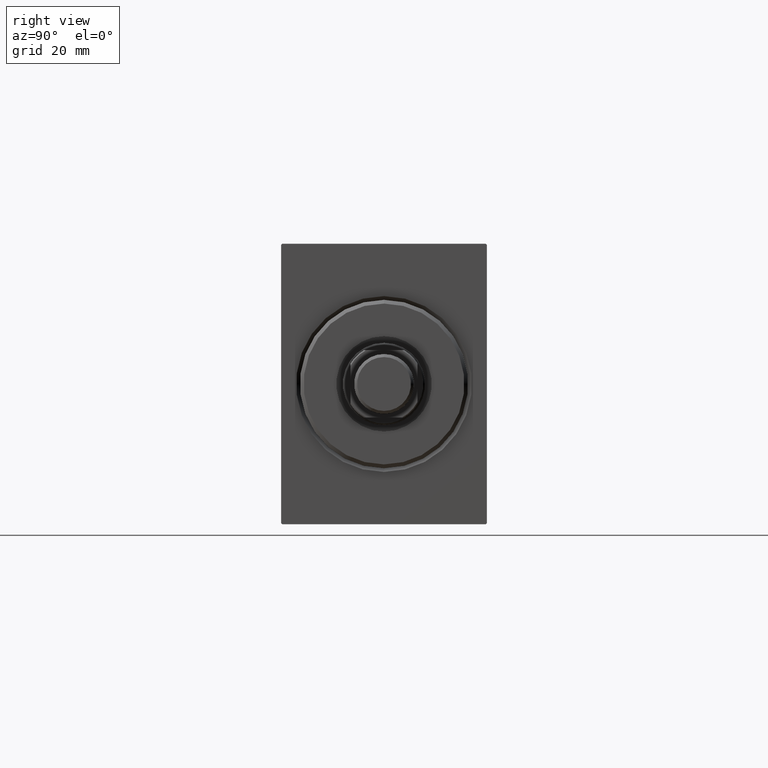
[diagram: clean part render]
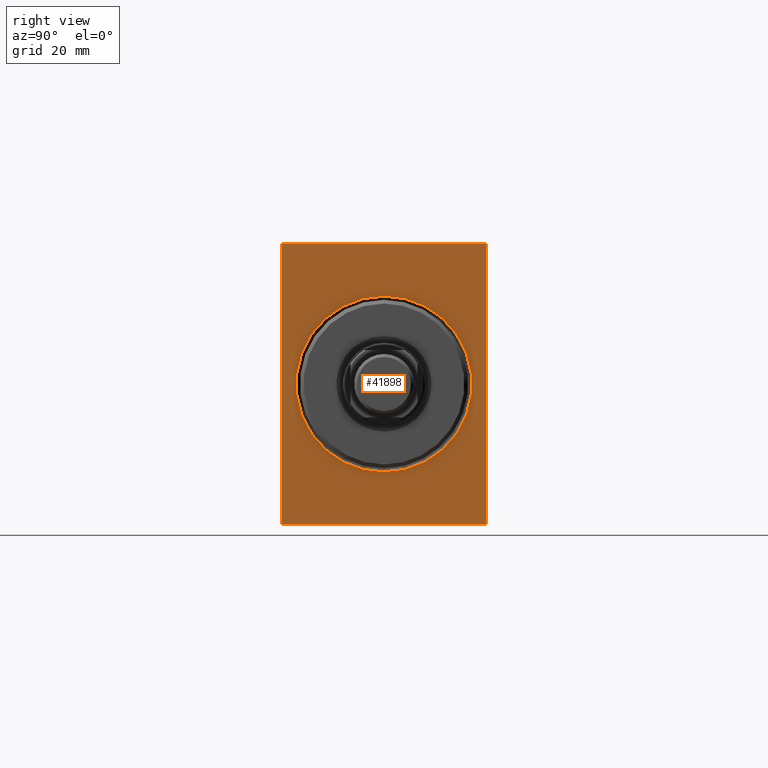
[diagram: same view with one face highlighted and labeled with its STEP entity id]
A machine part, right view. The second image highlights one B-rep face of the part: STEP entity #41898.
In plain terms, the highlighted planar face has unit normal (-1, 0, 0).
Its self-contained STEP definition (entity closure, byte-faithful):
#37 = EDGE_CURVE ( 'NONE', #37563, #41834, #14401, .T. ) ;
#553 = DIRECTION ( 'NONE',  ( 0.000000000000000000, -0.7071067811865271446, -0.7071067811865678898 ) ) ;
#870 = VERTEX_POINT ( 'NONE', #19197 ) ;
#909 = LINE ( 'NONE', #12392, #40592 ) ;
#924 = LINE ( 'NONE', #17108, #28385 ) ;
#1144 = EDGE_CURVE ( 'NONE', #30819, #16557, #16593, .T. ) ;
#1189 = EDGE_CURVE ( 'NONE', #37697, #14789, #5564, .T. ) ;
#1312 = VECTOR ( 'NONE', #17469, 1000.000000000000000 ) ;
#2530 = ORIENTED_EDGE ( 'NONE', *, *, #1144, .T. ) ;
#2691 = AXIS2_PLACEMENT_3D ( 'NONE', #31839, #8426, #35324 ) ;
#4283 = ORIENTED_EDGE ( 'NONE', *, *, #27379, .F. ) ;
#4828 = PLANE ( 'NONE',  #27433 ) ;
#5172 = CIRCLE ( 'NONE', #8690, 23.50000000000003197 ) ;
#5564 = LINE ( 'NONE', #31425, #13188 ) ;
#5612 = CARTESIAN_POINT ( 'NONE',  ( 0.000000000000000000, 27.49999999999999645, 37.50000000000000711 ) ) ;
#5708 = LINE ( 'NONE', #22796, #13944 ) ;
#7271 = VECTOR ( 'NONE', #16343, 1000.000000000000000 ) ;
#7788 = ORIENTED_EDGE ( 'NONE', *, *, #37, .F. ) ;
#7978 = EDGE_CURVE ( 'NONE', #34376, #14789, #19847, .T. ) ;
#8426 = DIRECTION ( 'NONE',  ( 1.000000000000000000, 0.000000000000000000, 0.000000000000000000 ) ) ;
#8682 = DIRECTION ( 'NONE',  ( 0.000000000000000000, 1.000000000000000000, 0.000000000000000000 ) ) ;
#8690 = AXIS2_PLACEMENT_3D ( 'NONE', #21997, #12147, #41691 ) ;
#8802 = CARTESIAN_POINT ( 'NONE',  ( 0.000000000000000000, -27.50000000000000000, 37.19999999999998153 ) ) ;
#8875 = CARTESIAN_POINT ( 'NONE',  ( 0.000000000000000000, 0.000000000000000000, 23.50000000000003197 ) ) ;
#9114 = EDGE_CURVE ( 'NONE', #16557, #30819, #5172, .T. ) ;
#10467 = CARTESIAN_POINT ( 'NONE',  ( 0.000000000000000000, 27.50000000000000355, -37.50000000000000711 ) ) ;
#12147 = DIRECTION ( 'NONE',  ( 1.000000000000000000, 0.000000000000000000, 0.000000000000000000 ) ) ;
#12229 = CARTESIAN_POINT ( 'NONE',  ( 0.000000000000000000, 27.20000000000001705, 37.50000000000000711 ) ) ;
#12392 = CARTESIAN_POINT ( 'NONE',  ( 0.000000000000000000, -27.50000000000000000, -37.50000000000000711 ) ) ;
#12852 = ORIENTED_EDGE ( 'NONE', *, *, #19661, .T. ) ;
#13188 = VECTOR ( 'NONE', #18705, 1000.000000000000000 ) ;
#13944 = VECTOR ( 'NONE', #38976, 1000.000000000000000 ) ;
#14262 = DIRECTION ( 'NONE',  ( -0.000000000000000000, -0.7071067811865638930, 0.7071067811865312525 ) ) ;
#14401 = LINE ( 'NONE', #10467, #1312 ) ;
#14767 = VECTOR ( 'NONE', #15501, 1000.000000000000114 ) ;
#14789 = VERTEX_POINT ( 'NONE', #21991 ) ;
#14904 = DIRECTION ( 'NONE',  ( 0.000000000000000000, 0.000000000000000000, -1.000000000000000000 ) ) ;
#15490 = VERTEX_POINT ( 'NONE', #32107 ) ;
#15501 = DIRECTION ( 'NONE',  ( -0.000000000000000000, 0.7071067811865474617, -0.7071067811865474617 ) ) ;
#15714 = CARTESIAN_POINT ( 'NONE',  ( 0.000000000000000000, 27.20000000000001705, 37.50000000000000711 ) ) ;
#16343 = DIRECTION ( 'NONE',  ( 0.000000000000000000, -1.000000000000000000, -2.523234146875355998E-16 ) ) ;
#16557 = VERTEX_POINT ( 'NONE', #8875 ) ;
#16593 = CIRCLE ( 'NONE', #2691, 23.50000000000003197 ) ;
#17108 = CARTESIAN_POINT ( 'NONE',  ( 0.000000000000000000, -27.19999999999997797, -37.50000000000000711 ) ) ;
#17159 = LINE ( 'NONE', #30512, #38701 ) ;
#17469 = DIRECTION ( 'NONE',  ( 0.000000000000000000, -9.251858538542970348E-17, 1.000000000000000000 ) ) ;
#18189 = CARTESIAN_POINT ( 'NONE',  ( 0.000000000000000000, 0.000000000000000000, 0.000000000000000000 ) ) ;
#18537 = ORIENTED_EDGE ( 'NONE', *, *, #33164, .T. ) ;
#18705 = DIRECTION ( 'NONE',  ( -0.000000000000000000, 0.7071067811865352493, 0.7071067811865597852 ) ) ;
#19197 = CARTESIAN_POINT ( 'NONE',  ( 0.000000000000000000, -27.19999999999997797, -37.50000000000000711 ) ) ;
#19626 = ORIENTED_EDGE ( 'NONE', *, *, #31204, .F. ) ;
#19661 = EDGE_CURVE ( 'NONE', #870, #15490, #924, .T. ) ;
#19847 = LINE ( 'NONE', #5612, #7271 ) ;
#21991 = CARTESIAN_POINT ( 'NONE',  ( 0.000000000000000000, -27.20000000000000284, 37.49999999999999289 ) ) ;
#21997 = CARTESIAN_POINT ( 'NONE',  ( 0.000000000000000000, 0.000000000000000000, 0.000000000000000000 ) ) ;
#22323 = ORIENTED_EDGE ( 'NONE', *, *, #7978, .F. ) ;
#22333 = CARTESIAN_POINT ( 'NONE',  ( 0.000000000000000000, 27.49999999999999645, 37.20000000000002416 ) ) ;
#22796 = CARTESIAN_POINT ( 'NONE',  ( 0.000000000000000000, -27.50000000000000000, 37.49999999999999289 ) ) ;
#23845 = ORIENTED_EDGE ( 'NONE', *, *, #9114, .T. ) ;
#24719 = EDGE_LOOP ( 'NONE', ( #22323, #18537, #7788, #41534, #19626, #12852, #4283, #31526 ) ) ;
#26556 = CARTESIAN_POINT ( 'NONE',  ( 0.000000000000000000, 27.50000000000000355, -37.19999999999999574 ) ) ;
#27379 = EDGE_CURVE ( 'NONE', #37697, #15490, #5708, .T. ) ;
#27433 = AXIS2_PLACEMENT_3D ( 'NONE', #18189, #28245, #14904 ) ;
#28245 = DIRECTION ( 'NONE',  ( 1.000000000000000000, 0.000000000000000000, 0.000000000000000000 ) ) ;
#28385 = VECTOR ( 'NONE', #14262, 1000.000000000000114 ) ;
#28413 = LINE ( 'NONE', #15714, #14767 ) ;
#28459 = FACE_OUTER_BOUND ( 'NONE', #24719, .T. ) ;
#30512 = CARTESIAN_POINT ( 'NONE',  ( 0.000000000000000000, 27.50000000000000355, -37.19999999999999574 ) ) ;
#30819 = VERTEX_POINT ( 'NONE', #35260 ) ;
#31204 = EDGE_CURVE ( 'NONE', #870, #32048, #909, .T. ) ;
#31425 = CARTESIAN_POINT ( 'NONE',  ( 0.000000000000000000, -27.50000000000000000, 37.19999999999998153 ) ) ;
#31526 = ORIENTED_EDGE ( 'NONE', *, *, #1189, .T. ) ;
#31839 = CARTESIAN_POINT ( 'NONE',  ( 0.000000000000000000, 0.000000000000000000, 0.000000000000000000 ) ) ;
#32048 = VERTEX_POINT ( 'NONE', #33258 ) ;
#32107 = CARTESIAN_POINT ( 'NONE',  ( 0.000000000000000000, -27.50000000000000000, -37.19999999999999574 ) ) ;
#33164 = EDGE_CURVE ( 'NONE', #34376, #41834, #28413, .T. ) ;
#33258 = CARTESIAN_POINT ( 'NONE',  ( 0.000000000000000000, 27.20000000000001350, -37.50000000000000711 ) ) ;
#34376 = VERTEX_POINT ( 'NONE', #12229 ) ;
#34814 = FACE_BOUND ( 'NONE', #40170, .T. ) ;
#35260 = CARTESIAN_POINT ( 'NONE',  ( 0.000000000000000000, 2.877919977996283870E-15, -23.50000000000003197 ) ) ;
#35324 = DIRECTION ( 'NONE',  ( 0.000000000000000000, 0.000000000000000000, -1.000000000000000000 ) ) ;
#37563 = VERTEX_POINT ( 'NONE', #26556 ) ;
#37697 = VERTEX_POINT ( 'NONE', #8802 ) ;
#38701 = VECTOR ( 'NONE', #553, 1000.000000000000114 ) ;
#38976 = DIRECTION ( 'NONE',  ( 0.000000000000000000, 0.000000000000000000, -1.000000000000000000 ) ) ;
#40170 = EDGE_LOOP ( 'NONE', ( #23845, #2530 ) ) ;
#40592 = VECTOR ( 'NONE', #8682, 1000.000000000000000 ) ;
#41534 = ORIENTED_EDGE ( 'NONE', *, *, #41659, .T. ) ;
#41659 = EDGE_CURVE ( 'NONE', #37563, #32048, #17159, .T. ) ;
#41691 = DIRECTION ( 'NONE',  ( 0.000000000000000000, 0.000000000000000000, -1.000000000000000000 ) ) ;
#41834 = VERTEX_POINT ( 'NONE', #22333 ) ;
#41898 = ADVANCED_FACE ( 'NONE', ( #34814, #28459 ), #4828, .F. ) ;